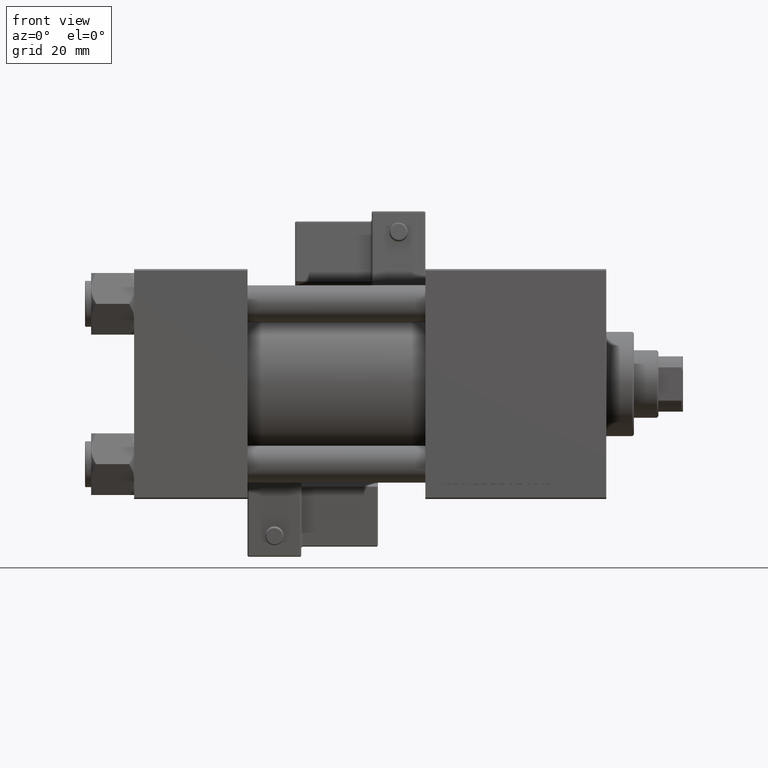
[diagram: clean part render]
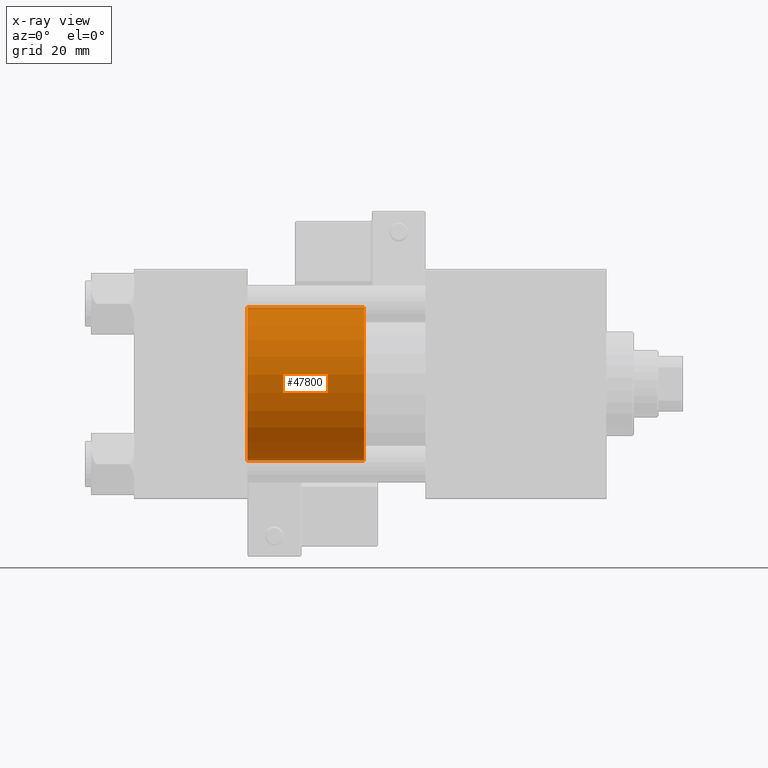
[diagram: x-ray — body ghosted, one internal face saturated and labeled with its STEP entity id]
A machine part, front view, then the same camera in x-ray: the body is ghosted and one INTERNAL B-rep face — a face not visible from any outside direction — is saturated and labeled: STEP entity #47800.
In plain terms, the highlighted cylindrical surface (partial cylindrical patch) has radius 25 mm, axis along (-1, 0, 0).
Its self-contained STEP definition (entity closure, byte-faithful):
#2322 = VECTOR ( 'NONE', #29066, 1000.000000000000000 ) ;
#2359 = AXIS2_PLACEMENT_3D ( 'NONE', #37586, #10025, #17426 ) ;
#4020 = EDGE_LOOP ( 'NONE', ( #5324, #50301, #31579, #13457 ) ) ;
#5122 = EDGE_CURVE ( 'NONE', #40485, #36140, #47278, .T. ) ;
#5324 = ORIENTED_EDGE ( 'NONE', *, *, #10997, .F. ) ;
#9193 = LINE ( 'NONE', #24575, #2322 ) ;
#10025 = DIRECTION ( 'NONE',  ( 0.000000000000000000, 0.000000000000000000, 1.000000000000000000 ) ) ;
#10875 = CARTESIAN_POINT ( 'NONE',  ( 25.00000000000000000, 3.061616997868383043E-15, 38.00000000000000000 ) ) ;
#10997 = EDGE_CURVE ( 'NONE', #47920, #40485, #39625, .T. ) ;
#11928 = VERTEX_POINT ( 'NONE', #38541 ) ;
#12199 = DIRECTION ( 'NONE',  ( 0.000000000000000000, 0.000000000000000000, 1.000000000000000000 ) ) ;
#13457 = ORIENTED_EDGE ( 'NONE', *, *, #5122, .F. ) ;
#16429 = DIRECTION ( 'NONE',  ( 1.000000000000000000, 0.000000000000000000, 0.000000000000000000 ) ) ;
#17426 = DIRECTION ( 'NONE',  ( 1.000000000000000000, 0.000000000000000000, 0.000000000000000000 ) ) ;
#17552 = CIRCLE ( 'NONE', #29390, 25.00000000000000000 ) ;
#24172 = AXIS2_PLACEMENT_3D ( 'NONE', #36425, #42146, #37199 ) ;
#24575 = CARTESIAN_POINT ( 'NONE',  ( 25.00000000000000000, 3.061616997868383043E-15, 38.00000000000000000 ) ) ;
#24733 = CYLINDRICAL_SURFACE ( 'NONE', #24172, 25.00000000000000000 ) ;
#29066 = DIRECTION ( 'NONE',  ( -0.000000000000000000, -0.000000000000000000, -1.000000000000000000 ) ) ;
#29390 = AXIS2_PLACEMENT_3D ( 'NONE', #52194, #12199, #16429 ) ;
#30726 = CARTESIAN_POINT ( 'NONE',  ( -25.00000000000000000, 0.000000000000000000, 0.000000000000000000 ) ) ;
#31579 = ORIENTED_EDGE ( 'NONE', *, *, #32114, .T. ) ;
#31848 = VECTOR ( 'NONE', #51001, 1000.000000000000000 ) ;
#32114 = EDGE_CURVE ( 'NONE', #11928, #36140, #17552, .T. ) ;
#36140 = VERTEX_POINT ( 'NONE', #30726 ) ;
#36425 = CARTESIAN_POINT ( 'NONE',  ( 0.000000000000000000, 0.000000000000000000, 38.00000000000000000 ) ) ;
#37199 = DIRECTION ( 'NONE',  ( -1.000000000000000000, 0.000000000000000000, 0.000000000000000000 ) ) ;
#37586 = CARTESIAN_POINT ( 'NONE',  ( 0.000000000000000000, 0.000000000000000000, 38.00000000000000000 ) ) ;
#37685 = CARTESIAN_POINT ( 'NONE',  ( -25.00000000000000000, 0.000000000000000000, 38.00000000000000000 ) ) ;
#38541 = CARTESIAN_POINT ( 'NONE',  ( 25.00000000000000000, 3.061616997868383043E-15, 0.000000000000000000 ) ) ;
#39625 = CIRCLE ( 'NONE', #2359, 25.00000000000000000 ) ;
#40485 = VERTEX_POINT ( 'NONE', #37685 ) ;
#42146 = DIRECTION ( 'NONE',  ( -0.000000000000000000, -0.000000000000000000, -1.000000000000000000 ) ) ;
#43328 = CARTESIAN_POINT ( 'NONE',  ( -25.00000000000000000, 0.000000000000000000, 38.00000000000000000 ) ) ;
#47278 = LINE ( 'NONE', #43328, #31848 ) ;
#47800 = ADVANCED_FACE ( 'NONE', ( #48582 ), #24733, .T. ) ;
#47920 = VERTEX_POINT ( 'NONE', #10875 ) ;
#48582 = FACE_OUTER_BOUND ( 'NONE', #4020, .T. ) ;
#50301 = ORIENTED_EDGE ( 'NONE', *, *, #51413, .T. ) ;
#51001 = DIRECTION ( 'NONE',  ( -0.000000000000000000, -0.000000000000000000, -1.000000000000000000 ) ) ;
#51413 = EDGE_CURVE ( 'NONE', #47920, #11928, #9193, .T. ) ;
#52194 = CARTESIAN_POINT ( 'NONE',  ( 0.000000000000000000, 0.000000000000000000, 0.000000000000000000 ) ) ;